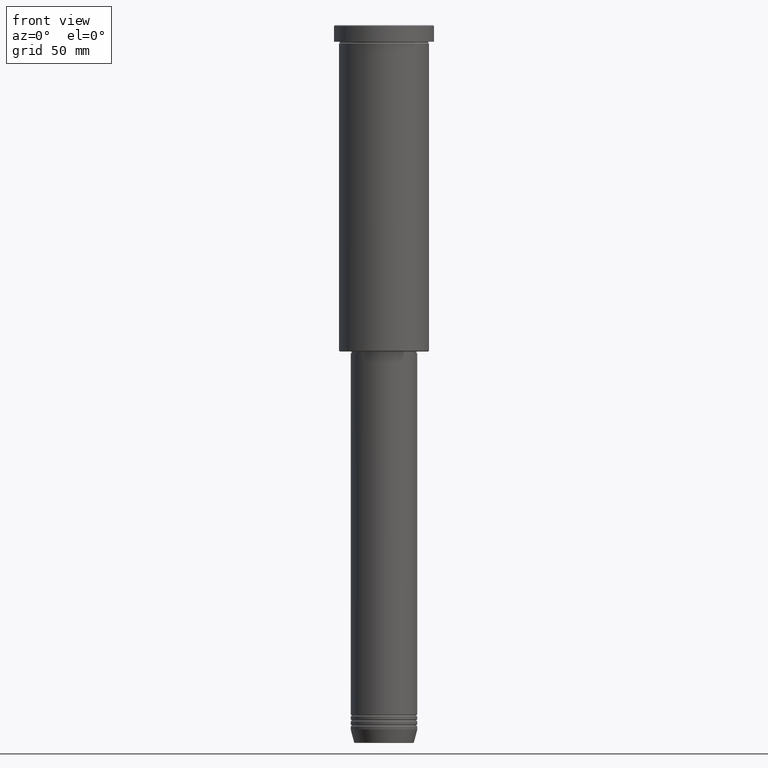
[diagram: clean part render]
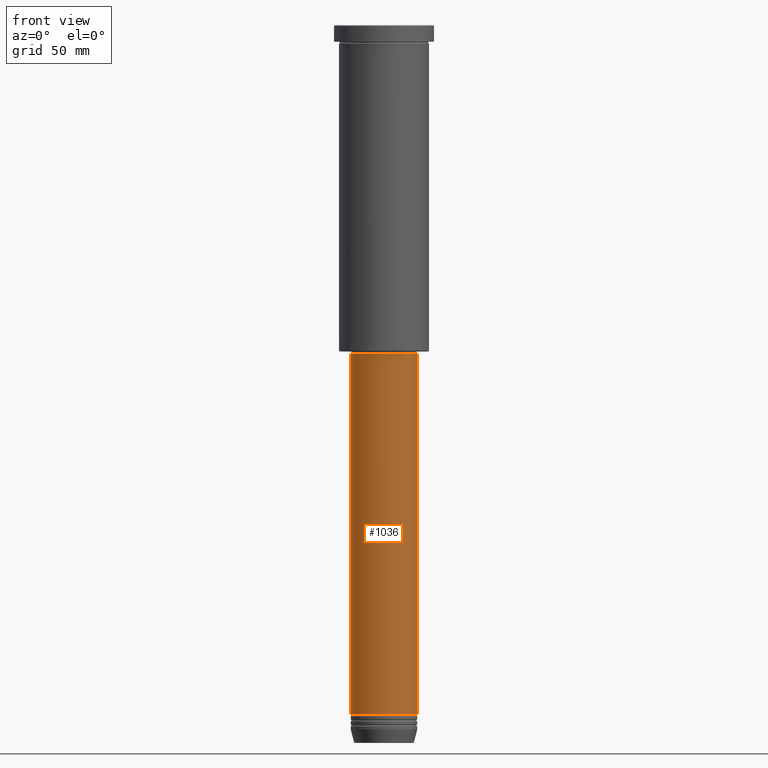
[diagram: same view with one face highlighted and labeled with its STEP entity id]
A machine part, front view. The second image highlights one B-rep face of the part: STEP entity #1036.
In plain terms, the highlighted cylindrical surface (edge-blend (fillet) strip) has radius 20 mm, axis along (-0, -0, 1).
Its self-contained STEP definition (entity closure, byte-faithful):
#5 = DIRECTION ( 'NONE',  ( 1.000000000000000000, 0.000000000000000000, 0.000000000000000000 ) ) ;
#22 = VERTEX_POINT ( 'NONE', #973 ) ;
#108 = AXIS2_PLACEMENT_3D ( 'NONE', #1037, #657, #483 ) ;
#154 = EDGE_CURVE ( 'NONE', #707, #462, #276, .T. ) ;
#183 = LINE ( 'NONE', #370, #1129 ) ;
#230 = ORIENTED_EDGE ( 'NONE', *, *, #154, .F. ) ;
#232 = DIRECTION ( 'NONE',  ( -0.000000000000000000, -0.000000000000000000, 1.000000000000000000 ) ) ;
#237 = CARTESIAN_POINT ( 'NONE',  ( -20.00000000000000000, 2.449293598294706513E-15, 0.000000000000000000 ) ) ;
#245 = ORIENTED_EDGE ( 'NONE', *, *, #338, .F. ) ;
#255 = CARTESIAN_POINT ( 'NONE',  ( -20.00000000000000000, 2.449293598294706513E-15, -414.0000000000000000 ) ) ;
#276 = CIRCLE ( 'NONE', #108, 20.00000000000000000 ) ;
#291 = CIRCLE ( 'NONE', #731, 20.00000000000000000 ) ;
#314 = CARTESIAN_POINT ( 'NONE',  ( 0.000000000000000000, 0.000000000000000000, -414.0000000000000000 ) ) ;
#338 = EDGE_CURVE ( 'NONE', #780, #707, #896, .T. ) ;
#370 = CARTESIAN_POINT ( 'NONE',  ( 20.00000000000000000, 0.000000000000000000, 0.000000000000000000 ) ) ;
#382 = ORIENTED_EDGE ( 'NONE', *, *, #834, .T. ) ;
#462 = VERTEX_POINT ( 'NONE', #715 ) ;
#483 = DIRECTION ( 'NONE',  ( 1.000000000000000000, 0.000000000000000000, 0.000000000000000000 ) ) ;
#511 = DIRECTION ( 'NONE',  ( -0.000000000000000000, -0.000000000000000000, 1.000000000000000000 ) ) ;
#596 = FACE_OUTER_BOUND ( 'NONE', #712, .T. ) ;
#628 = AXIS2_PLACEMENT_3D ( 'NONE', #1039, #232, #5 ) ;
#657 = DIRECTION ( 'NONE',  ( -0.000000000000000000, -0.000000000000000000, 1.000000000000000000 ) ) ;
#707 = VERTEX_POINT ( 'NONE', #963 ) ;
#712 = EDGE_LOOP ( 'NONE', ( #245, #858, #382, #230 ) ) ;
#715 = CARTESIAN_POINT ( 'NONE',  ( 20.00000000000000000, 0.000000000000000000, -196.9999999999999147 ) ) ;
#731 = AXIS2_PLACEMENT_3D ( 'NONE', #314, #1099, #1028 ) ;
#780 = VERTEX_POINT ( 'NONE', #255 ) ;
#834 = EDGE_CURVE ( 'NONE', #22, #462, #183, .T. ) ;
#858 = ORIENTED_EDGE ( 'NONE', *, *, #1100, .T. ) ;
#896 = LINE ( 'NONE', #237, #1069 ) ;
#963 = CARTESIAN_POINT ( 'NONE',  ( -20.00000000000000000, 2.449293598294706513E-15, -196.9999999999999147 ) ) ;
#973 = CARTESIAN_POINT ( 'NONE',  ( 20.00000000000000000, 0.000000000000000000, -414.0000000000000000 ) ) ;
#1028 = DIRECTION ( 'NONE',  ( 1.000000000000000000, 0.000000000000000000, 0.000000000000000000 ) ) ;
#1036 = ADVANCED_FACE ( 'NONE', ( #596 ), #1139, .T. ) ;
#1037 = CARTESIAN_POINT ( 'NONE',  ( 0.000000000000000000, 0.000000000000000000, -196.9999999999999147 ) ) ;
#1039 = CARTESIAN_POINT ( 'NONE',  ( 0.000000000000000000, 0.000000000000000000, 0.000000000000000000 ) ) ;
#1069 = VECTOR ( 'NONE', #511, 1000.000000000000000 ) ;
#1099 = DIRECTION ( 'NONE',  ( -0.000000000000000000, -0.000000000000000000, 1.000000000000000000 ) ) ;
#1100 = EDGE_CURVE ( 'NONE', #780, #22, #291, .T. ) ;
#1129 = VECTOR ( 'NONE', #1182, 1000.000000000000000 ) ;
#1139 = CYLINDRICAL_SURFACE ( 'NONE', #628, 20.00000000000000000 ) ;
#1182 = DIRECTION ( 'NONE',  ( -0.000000000000000000, -0.000000000000000000, 1.000000000000000000 ) ) ;